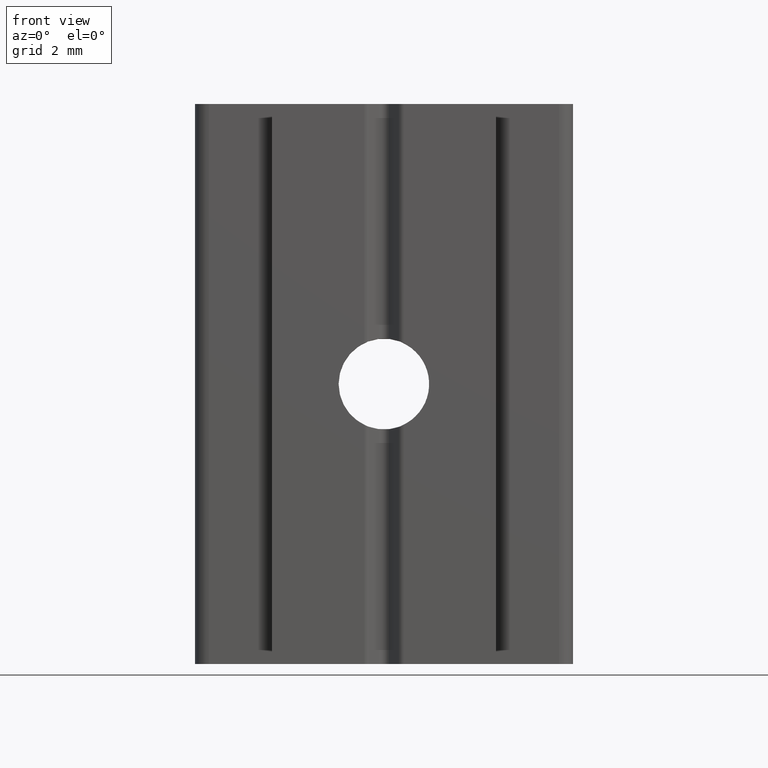
[diagram: clean part render]
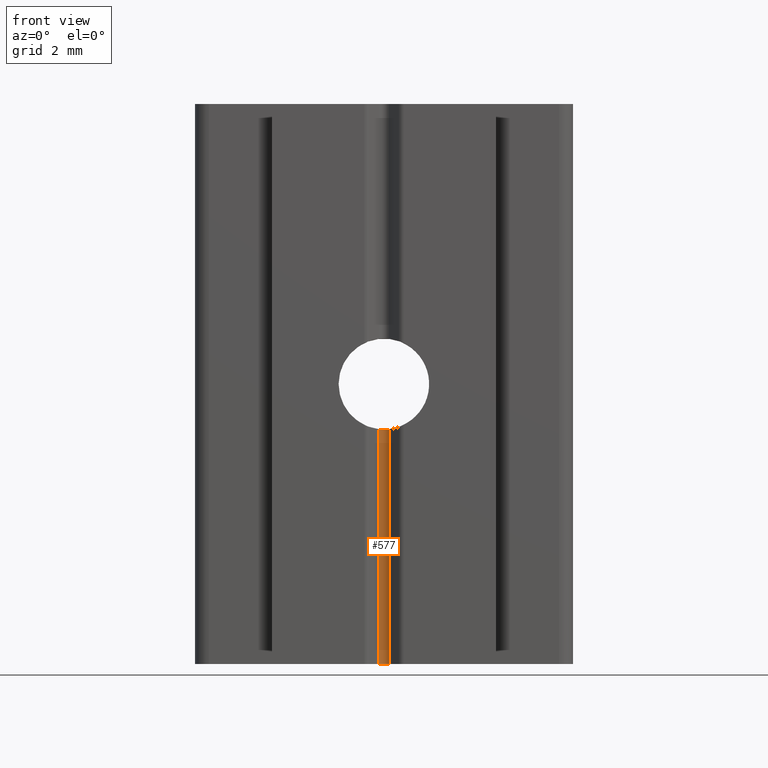
[diagram: same view with one face highlighted and labeled with its STEP entity id]
A machine part, front view. The second image highlights one B-rep face of the part: STEP entity #577.
In plain terms, the highlighted cylindrical surface (edge-blend (fillet) strip) has radius 0.25 mm, axis along (0, 0, 1).
Its self-contained STEP definition (entity closure, byte-faithful):
#37=FACE_OUTER_BOUND('',#67,.T.);
#67=EDGE_LOOP('',(#415,#416,#417,#418));
#99=B_SPLINE_CURVE_WITH_KNOTS('',3,(#871,#872,#873,#874,#875,#876,#877,
#878,#879,#880),.UNSPECIFIED.,.F.,.F.,(4,2,2,2,4),(0.0188669036453617,0.02830017142838,
0.0377334392113984,0.0471667069944167,0.0565999747774351),.UNSPECIFIED.);
#113=LINE('',#941,#168);
#114=LINE('',#945,#169);
#168=VECTOR('',#719,10.);
#169=VECTOR('',#724,10.);
#220=CIRCLE('',#638,0.25);
#242=VERTEX_POINT('',#868);
#243=VERTEX_POINT('',#870);
#258=VERTEX_POINT('',#939);
#259=VERTEX_POINT('',#943);
#302=EDGE_CURVE('',#243,#242,#99,.T.);
#321=EDGE_CURVE('',#258,#242,#113,.T.);
#322=EDGE_CURVE('',#259,#258,#220,.T.);
#323=EDGE_CURVE('',#259,#243,#114,.T.);
#415=ORIENTED_EDGE('',*,*,#302,.T.);
#416=ORIENTED_EDGE('',*,*,#321,.F.);
#417=ORIENTED_EDGE('',*,*,#322,.F.);
#418=ORIENTED_EDGE('',*,*,#323,.T.);
#562=CYLINDRICAL_SURFACE('',#637,0.25);
#577=ADVANCED_FACE('',(#37),#562,.F.);
#637=AXIS2_PLACEMENT_3D('',#942,#720,#721);
#638=AXIS2_PLACEMENT_3D('',#944,#722,#723);
#719=DIRECTION('',(0.,0.,1.));
#720=DIRECTION('center_axis',(0.,0.,1.));
#721=DIRECTION('ref_axis',(0.707106781186547,0.707106781186548,0.));
#722=DIRECTION('center_axis',(0.,0.,1.));
#723=DIRECTION('ref_axis',(0.707106781186547,0.707106781186548,0.));
#724=DIRECTION('',(0.,0.,1.));
#868=CARTESIAN_POINT('',(-0.176776695296637,-2.57322330470336,-1.61133205764672));
#870=CARTESIAN_POINT('',(0.176776695296638,-2.57322330470336,-1.61133205764672));
#871=CARTESIAN_POINT('Ctrl Pts',(0.176776695296637,-2.57322330470336,-1.61133205764672));
#872=CARTESIAN_POINT('Ctrl Pts',(0.154608872483039,-2.55105548188977,-1.61376405447835));
#873=CARTESIAN_POINT('Ctrl Pts',(0.126530580969824,-2.53182351710259,-1.61634846570126));
#874=CARTESIAN_POINT('Ctrl Pts',(0.064950331056071,-2.50629439802105,-1.61999191508839));
#875=CARTESIAN_POINT('Ctrl Pts',(0.0314442259433945,-2.5,-1.621));
#876=CARTESIAN_POINT('Ctrl Pts',(-0.0314442259433945,-2.5,-1.621));
#877=CARTESIAN_POINT('Ctrl Pts',(-0.0649503310560711,-2.50629439802105,
-1.61999191508839));
#878=CARTESIAN_POINT('Ctrl Pts',(-0.126530580969824,-2.53182351710259,-1.61634846570126));
#879=CARTESIAN_POINT('Ctrl Pts',(-0.154608872483039,-2.55105548188977,-1.61376405447835));
#880=CARTESIAN_POINT('Ctrl Pts',(-0.176776695296637,-2.57322330470336,-1.61133205764672));
#939=CARTESIAN_POINT('',(-0.176776695296637,-2.57322330470336,-10.));
#941=CARTESIAN_POINT('',(-0.176776695296637,-2.57322330470336,0.));
#942=CARTESIAN_POINT('Origin',(-4.71467650385233E-30,-2.75,0.));
#943=CARTESIAN_POINT('',(0.176776695296638,-2.57322330470336,-10.));
#944=CARTESIAN_POINT('Origin',(-4.71467650385233E-30,-2.75,-10.));
#945=CARTESIAN_POINT('',(0.176776695296638,-2.57322330470336,0.));